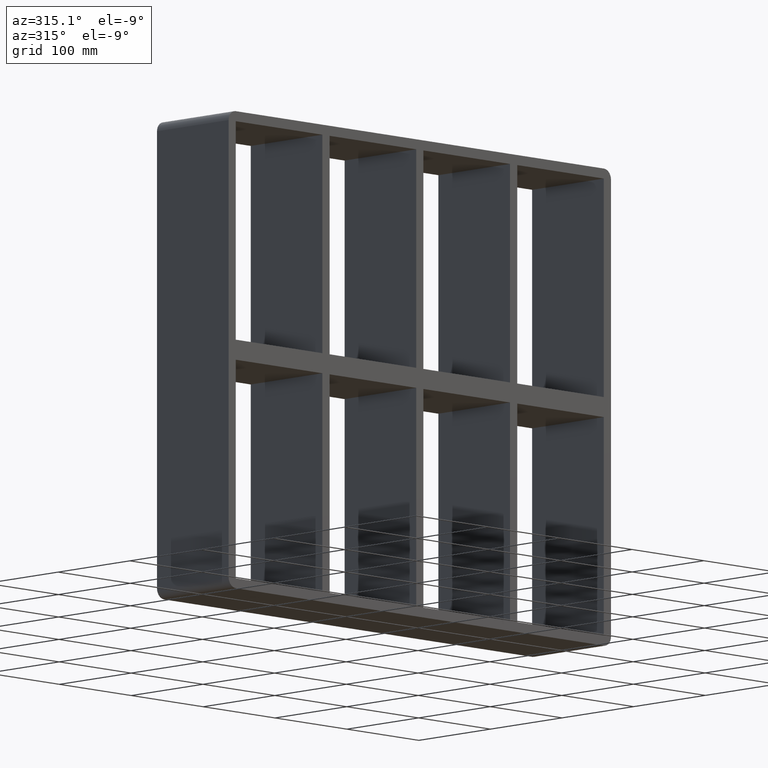
[diagram: clean part render]
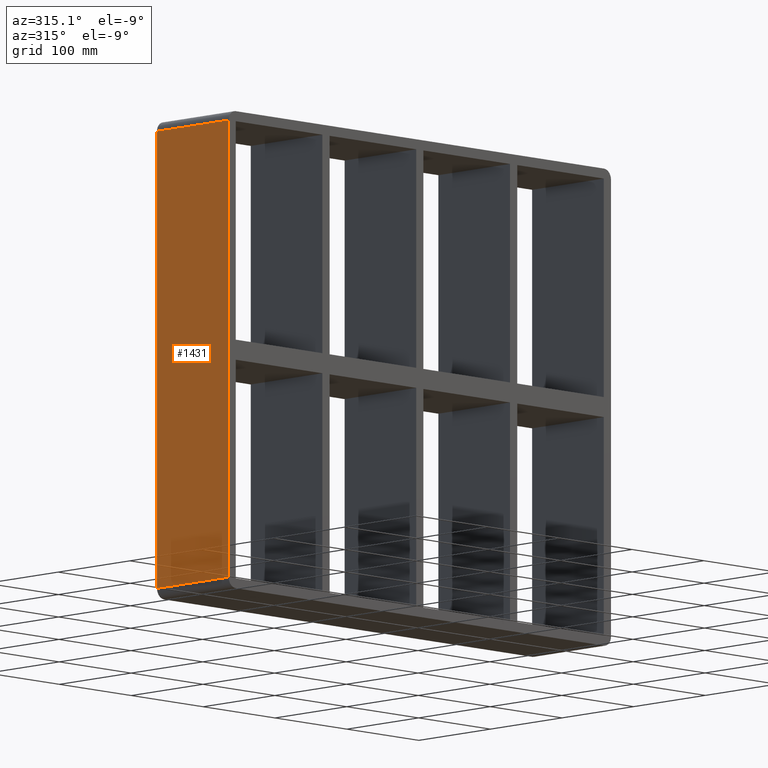
[diagram: same view with one face highlighted and labeled with its STEP entity id]
A machine part, auxiliary view. The second image highlights one B-rep face of the part: STEP entity #1431.
In plain terms, the highlighted planar face has unit normal (-1, 0, 0).
Its self-contained STEP definition (entity closure, byte-faithful):
#479=CARTESIAN_POINT('',(-266.0,-3.0,-228.0));
#480=VERTEX_POINT('',#479);
#530=CARTESIAN_POINT('',(-266.0,-3.0,228.0));
#531=VERTEX_POINT('',#530);
#539=CARTESIAN_POINT('',(-266.0,-3.0,228.0));
#540=DIRECTION('',(0.0,0.0,-1.0));
#541=VECTOR('',#540,456.0);
#542=LINE('',#539,#541);
#543=EDGE_CURVE('',#531,#480,#542,.T.);
#782=CARTESIAN_POINT('',(-266.0,97.0,-228.0));
#783=VERTEX_POINT('',#782);
#793=CARTESIAN_POINT('',(-266.0,97.0,228.0));
#794=VERTEX_POINT('',#793);
#795=CARTESIAN_POINT('',(-266.0,97.0,-228.0));
#796=DIRECTION('',(0.0,0.0,1.0));
#797=VECTOR('',#796,456.0);
#798=LINE('',#795,#797);
#799=EDGE_CURVE('',#783,#794,#798,.T.);
#1309=CARTESIAN_POINT('',(-266.0,-3.0,-228.0));
#1310=DIRECTION('',(0.0,1.0,0.0));
#1311=VECTOR('',#1310,100.0);
#1312=LINE('',#1309,#1311);
#1313=EDGE_CURVE('',#480,#783,#1312,.T.);
#1397=CARTESIAN_POINT('',(-266.0,97.0,228.0));
#1398=DIRECTION('',(0.0,-1.0,0.0));
#1399=VECTOR('',#1398,100.0);
#1400=LINE('',#1397,#1399);
#1401=EDGE_CURVE('',#794,#531,#1400,.T.);
#1420=CARTESIAN_POINT('',(-266.0,0.0,-238.0));
#1421=DIRECTION('',(-1.0,0.0,0.0));
#1422=DIRECTION('',(0.0,0.0,1.0));
#1423=AXIS2_PLACEMENT_3D('',#1420,#1421,#1422);
#1424=PLANE('',#1423);
#1425=ORIENTED_EDGE('',*,*,#1313,.F.);
#1426=ORIENTED_EDGE('',*,*,#543,.F.);
#1427=ORIENTED_EDGE('',*,*,#1401,.F.);
#1428=ORIENTED_EDGE('',*,*,#799,.F.);
#1429=EDGE_LOOP('',(#1425,#1426,#1427,#1428));
#1430=FACE_OUTER_BOUND('',#1429,.T.);
#1431=ADVANCED_FACE('',(#1430),#1424,.T.);